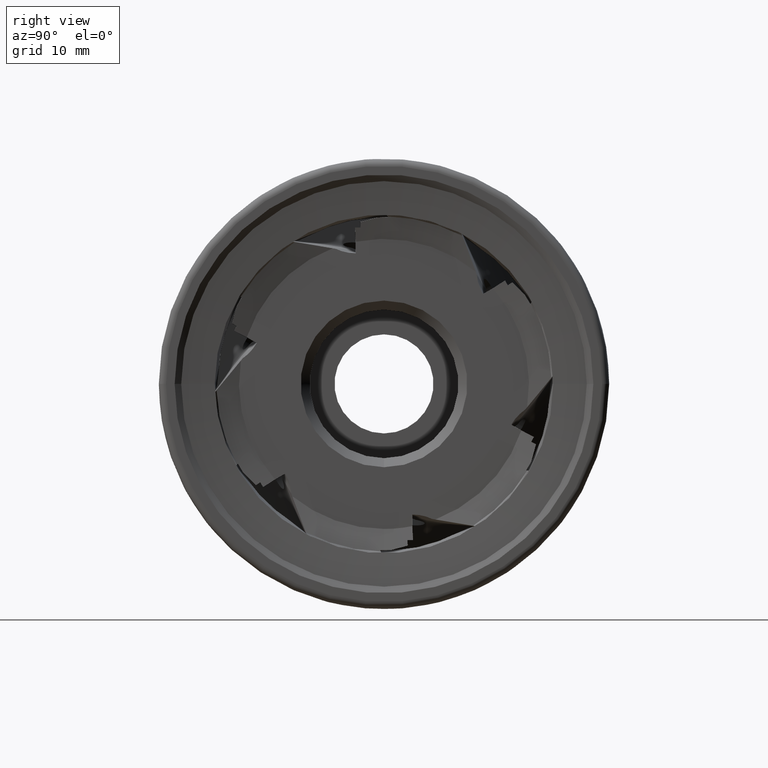
[diagram: clean part render]
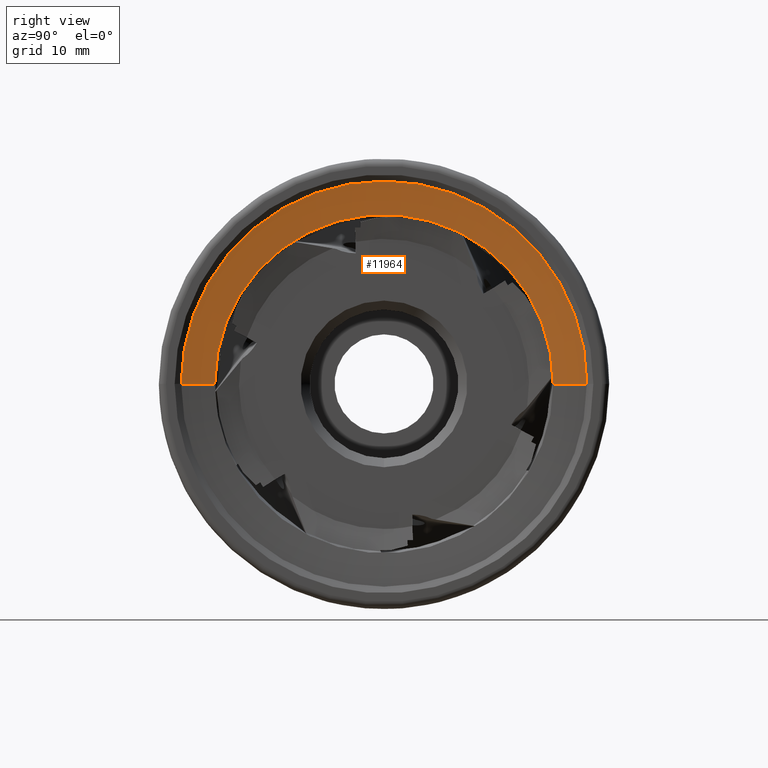
[diagram: same view with one face highlighted and labeled with its STEP entity id]
A machine part, right view. The second image highlights one B-rep face of the part: STEP entity #11964.
In plain terms, the highlighted conical surface has half-angle 84.256 deg.
Its self-contained STEP definition (entity closure, byte-faithful):
#693 = AXIS2_PLACEMENT_3D ( 'NONE', #8339, #8340, #8348 ) ;
#2121 = LINE ( 'NONE', #4321, #2125 ) ;
#2125 = VECTOR ( 'NONE', #4322, 1000.000000000000200 ) ;
#2269 = LINE ( 'NONE', #8103, #2272 ) ;
#2272 = VECTOR ( 'NONE', #8104, 1000.000000000000200 ) ;
#3882 = EDGE_CURVE ( 'NONE', #12348, #12627, #5914, .T. ) ;
#3883 = EDGE_CURVE ( 'NONE', #12739, #12775, #5916, .T. ) ;
#4053 = AXIS2_PLACEMENT_3D ( 'NONE', #7119, #7120, #7121 ) ;
#4054 = AXIS2_PLACEMENT_3D ( 'NONE', #7122, #7123, #7124 ) ;
#4321 = CARTESIAN_POINT ( 'NONE',  ( 0.1745224420202135500, 22.51390323877974700, 0.0000000000000000000 ) ) ;
#4322 = DIRECTION ( 'NONE',  ( 0.1000884801826402700, 0.9949785405398093900, 0.0000000000000000000 ) ) ;
#5914 = CIRCLE ( 'NONE', #4053, 18.79077953782271800 ) ;
#5916 = CIRCLE ( 'NONE', #4054, 22.51390323877974700 ) ;
#6230 = FACE_OUTER_BOUND ( 'NONE', #8801, .T. ) ;
#6238 = CONICAL_SURFACE ( 'NONE', #693, 22.51390323877974700, 1.470539979306378500 ) ;
#7119 = CARTESIAN_POINT ( 'NONE',  ( -0.2000000000000768400, -8.775422694088628800E-016, 0.0000000000000000000 ) ) ;
#7120 = DIRECTION ( 'NONE',  ( 1.000000000000000000, 1.230161537634880000E-016, -0.0000000000000000000 ) ) ;
#7121 = DIRECTION ( 'NONE',  ( -1.226095815713376400E-016, 1.000000000000000000, 0.0000000000000000000 ) ) ;
#7122 = CARTESIAN_POINT ( 'NONE',  ( 0.1745224420202163000, -8.314699590934174700E-016, 0.0000000000000000000 ) ) ;
#7123 = DIRECTION ( 'NONE',  ( 1.000000000000000000, 1.230161537634880000E-016, -0.0000000000000000000 ) ) ;
#7124 = DIRECTION ( 'NONE',  ( -1.228003652017065300E-016, 1.000000000000000000, 0.0000000000000000000 ) ) ;
#8103 = CARTESIAN_POINT ( 'NONE',  ( 0.1745224420202190800, -22.51390323877974700, 2.757157953768484400E-015 ) ) ;
#8104 = DIRECTION ( 'NONE',  ( 0.1000884801826405400, -0.9949785405398093900, 1.218497284892382500E-016 ) ) ;
#8339 = CARTESIAN_POINT ( 'NONE',  ( 0.1745224420202163000, -8.314699590934174700E-016, 0.0000000000000000000 ) ) ;
#8340 = DIRECTION ( 'NONE',  ( 1.000000000000000000, 1.230161537634880000E-016, -0.0000000000000000000 ) ) ;
#8348 = DIRECTION ( 'NONE',  ( -1.228003652017065300E-016, 1.000000000000000000, 0.0000000000000000000 ) ) ;
#8458 = CARTESIAN_POINT ( 'NONE',  ( -0.2000000000000791700, 18.79077953782271800, 0.0000000000000000000 ) ) ;
#8581 = CARTESIAN_POINT ( 'NONE',  ( -0.2000000000000745300, -18.79077953782271800, 2.301206801447817300E-015 ) ) ;
#8618 = CARTESIAN_POINT ( 'NONE',  ( 0.1745224420202135500, 22.51390323877974700, 0.0000000000000000000 ) ) ;
#8630 = CARTESIAN_POINT ( 'NONE',  ( 0.1745224420202190800, -22.51390323877974700, 2.757157953768484400E-015 ) ) ;
#8801 = EDGE_LOOP ( 'NONE', ( #10051, #9977, #9955, #9954 ) ) ;
#9954 = ORIENTED_EDGE ( 'NONE', *, *, #3883, .T. ) ;
#9955 = ORIENTED_EDGE ( 'NONE', *, *, #11059, .T. ) ;
#9977 = ORIENTED_EDGE ( 'NONE', *, *, #3882, .F. ) ;
#10051 = ORIENTED_EDGE ( 'NONE', *, *, #11248, .F. ) ;
#11059 = EDGE_CURVE ( 'NONE', #12348, #12739, #2121, .T. ) ;
#11248 = EDGE_CURVE ( 'NONE', #12627, #12775, #2269, .T. ) ;
#11964 = ADVANCED_FACE ( 'NONE', ( #6230 ), #6238, .F. ) ;
#12348 = VERTEX_POINT ( 'NONE', #8458 ) ;
#12627 = VERTEX_POINT ( 'NONE', #8581 ) ;
#12739 = VERTEX_POINT ( 'NONE', #8618 ) ;
#12775 = VERTEX_POINT ( 'NONE', #8630 ) ;